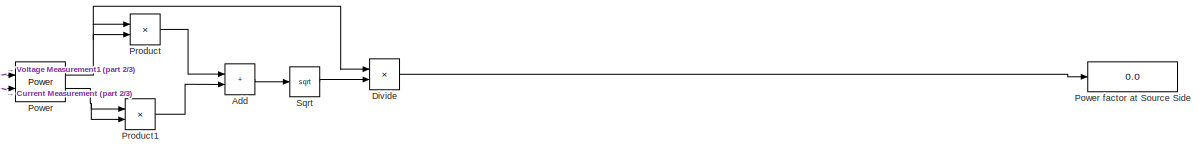
[diagram: root canvas - part 1/3, full width, top band]
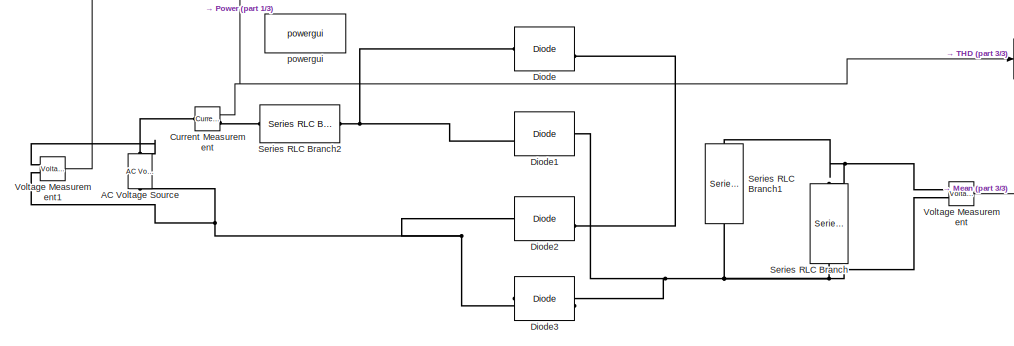
[diagram: root canvas - part 2/3, middle left region]
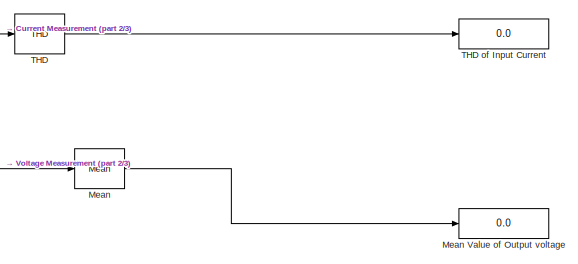
[diagram: root canvas - part 3/3, middle right region]
MODEL slx_59fbda3b7c12
KIND model
CONFIG AbsTol = auto
CONFIG EnableMultiTasking = off
CONFIG FixedStep = auto
CONFIG MaxStep = auto
CONFIG MinStep = auto
CONFIG RelTol = 1e-3
CONFIG SampleTimeConstraint = Unconstrained
CONFIG SolverName = VariableStepAuto
CONFIG StartTime = 0.0
CONFIG StopTime = 1
BLOCK [Reference] AC Voltage Source  REF=spsACVoltageSourceLib/AC Voltage Source
  Ports = [0, 0, 0, 0, 0, 1, 1]
  SourceBlock = spsACVoltageSourceLib/AC Voltage Source
  SourceProductBaseCode = PS
  SourceType = AC Voltage Source
BLOCK [Sum] Add
  IconShape = rectangular
  Ports = [2, 1]
BLOCK [Reference] Current Measurement  REF=spsCurrentMeasurementLib/Current Measurement
  Ports = [0, 1, 0, 0, 0, 1, 1]
  SourceBlock = spsCurrentMeasurementLib/Current Measurement
  SourceProductBaseCode = PS
  SourceType = Current Measurement
  UserDataPersistent = on
BLOCK [Reference] Diode  REF=spsDiodeLib/Diode
  Ports = [0, 1, 0, 0, 0, 1, 1]
  SourceBlock = spsDiodeLib/Diode
  SourceProductBaseCode = PS
  SourceType = Diode
BLOCK [Reference] Diode1  REF=spsDiodeLib/Diode
  NameLocation = top
  Ports = [0, 1, 0, 0, 0, 1, 1]
  SourceBlock = spsDiodeLib/Diode
  SourceProductBaseCode = PS
  SourceType = Diode
BLOCK [Reference] Diode2  REF=spsDiodeLib/Diode
  Ports = [0, 1, 0, 0, 0, 1, 1]
  SourceBlock = spsDiodeLib/Diode
  SourceProductBaseCode = PS
  SourceType = Diode
BLOCK [Reference] Diode3  REF=spsDiodeLib/Diode
  NameLocation = top
  Ports = [0, 1, 0, 0, 0, 1, 1]
  SourceBlock = spsDiodeLib/Diode
  SourceProductBaseCode = PS
  SourceType = Diode
BLOCK [Product] Divide
  Inputs = */
  Ports = [2, 1]
BLOCK [Reference] Mean  REF=spsMeanLib/Mean
  Ports = [1, 1]
  SourceBlock = spsMeanLib/Mean
  SourceProductBaseCode = PS
  SourceType = Mean
BLOCK [Display] Mean Value of Output voltage
  Decimation = 1
  Ports = [1]
BLOCK [Reference] Power  REF=spsPowerLib/Power
  Ports = [2, 2]
  SourceBlock = spsPowerLib/Power
  SourceProductBaseCode = PS
  SourceType = Power
BLOCK [Display] Power factor at Source Side
  Decimation = 1
  Ports = [1]
BLOCK [Product] Product
  Ports = [2, 1]
BLOCK [Product] Product1
  Ports = [2, 1]
BLOCK [Reference] Series RLC Branch  REF=spsSeriesRLCBranchLib/Series RLC Branch
  NameLocation = left
  Ports = [0, 0, 0, 0, 0, 1, 1]
  SourceBlock = spsSeriesRLCBranchLib/Series RLC Branch
  SourceProductBaseCode = PS
  SourceType = Series RLC Branch
BLOCK [Reference] Series RLC Branch1  REF=spsSeriesRLCBranchLib/Series RLC Branch
  NameLocation = left
  Ports = [0, 0, 0, 0, 0, 1, 1]
  SourceBlock = spsSeriesRLCBranchLib/Series RLC Branch
  SourceProductBaseCode = PS
  SourceType = Series RLC Branch
BLOCK [Reference] Series RLC Branch2  REF=spsSeriesRLCBranchLib/Series RLC Branch
  Ports = [0, 0, 0, 0, 0, 1, 1]
  SourceBlock = spsSeriesRLCBranchLib/Series RLC Branch
  SourceProductBaseCode = PS
  SourceType = Series RLC Branch
BLOCK [Sqrt] Sqrt
BLOCK [Reference] THD  REF=spsTHDLib/THD
  Ports = [1, 1]
  SourceBlock = spsTHDLib/THD
  SourceProductBaseCode = PS
  SourceType = THD
BLOCK [Display] THD of Input Current
  Decimation = 1
  Ports = [1]
BLOCK [Reference] Voltage Measurement  REF=spsVoltageMeasurementLib/Voltage Measurement
  Ports = [0, 1, 0, 0, 0, 2]
  SourceBlock = spsVoltageMeasurementLib/Voltage Measurement
  SourceProductBaseCode = PS
  SourceType = Voltage Measurement
  UserDataPersistent = on
BLOCK [Reference] Voltage Measurement1  REF=spsVoltageMeasurementLib/Voltage Measurement
  Ports = [0, 1, 0, 0, 0, 2]
  SourceBlock = spsVoltageMeasurementLib/Voltage Measurement
  SourceProductBaseCode = PS
  SourceType = Voltage Measurement
  UserDataPersistent = on
BLOCK [Reference] powergui  REF=spspowerguiLib/powergui
  Ports = []
  Priority = 1
  SourceBlock = spspowerguiLib/powergui
  SourceProductBaseCode = PS
  SourceType = PSB option menu block
LINE Add:1 -> Sqrt:1
NET Current Measurement:1 -> Power:2, THD:1
LINE Divide:1 -> Power factor at Source Side:1
LINE Mean:1 -> Mean Value of Output voltage:1
NET Power:1 -> Divide:1, Product:1, Product:2
NET Power:2 -> Product1:1, Product1:2
LINE Product1:1 -> Add:2
LINE Product:1 -> Add:1
LINE Sqrt:1 -> Divide:2
LINE THD:1 -> THD of Input Current:1
LINE Voltage Measurement1:1 -> Power:1
LINE Voltage Measurement:1 -> Mean:1
PNET net1: AC Voltage Source:LConn1 -- Diode2:LConn1 -- Diode3:RConn1 -- Voltage Measurement1:LConn2
PNET net2: AC Voltage Source:RConn1 -- Current Measurement:LConn1 -- Voltage Measurement1:LConn1
PLINE Current Measurement:RConn1 -- Series RLC Branch2:LConn1
PNET net3: Diode1:LConn1 -- Diode3:LConn1 -- Series RLC Branch1:RConn1 -- Series RLC Branch:RConn1 -- Voltage Measurement:LConn2
PNET net4: Diode1:RConn1 -- Diode:LConn1 -- Series RLC Branch2:RConn1
PLINE Diode2:RConn1 -- Diode:RConn1
PNET net5: Series RLC Branch1:LConn1 -- Series RLC Branch:LConn1 -- Voltage Measurement:LConn1
note: NET lines group one-source signal fan-out (src -> all destinations, sorted); 1:1 wires keep LINE; PNET lines group multi-terminal physical nets as a canonical sorted terminal list (undirected conserving connections); 2-terminal nets keep the pairwise PLINE form
